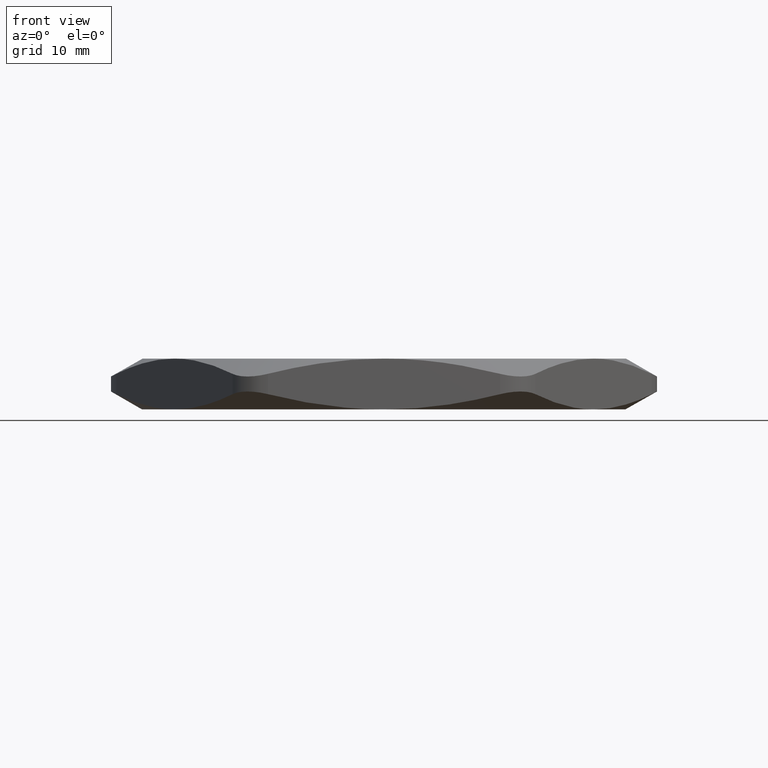
[diagram: clean part render]
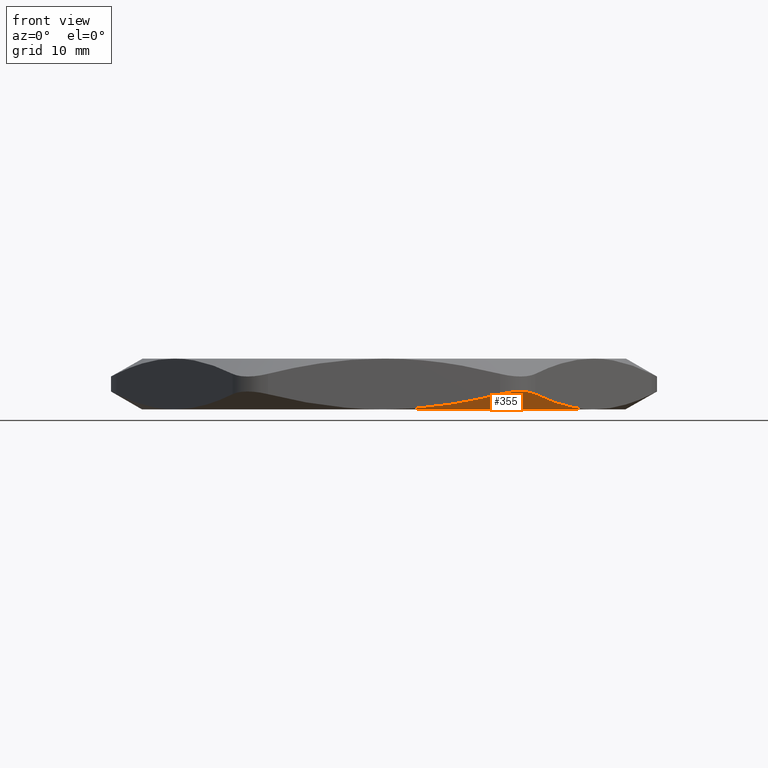
[diagram: same view with one face highlighted and labeled with its STEP entity id]
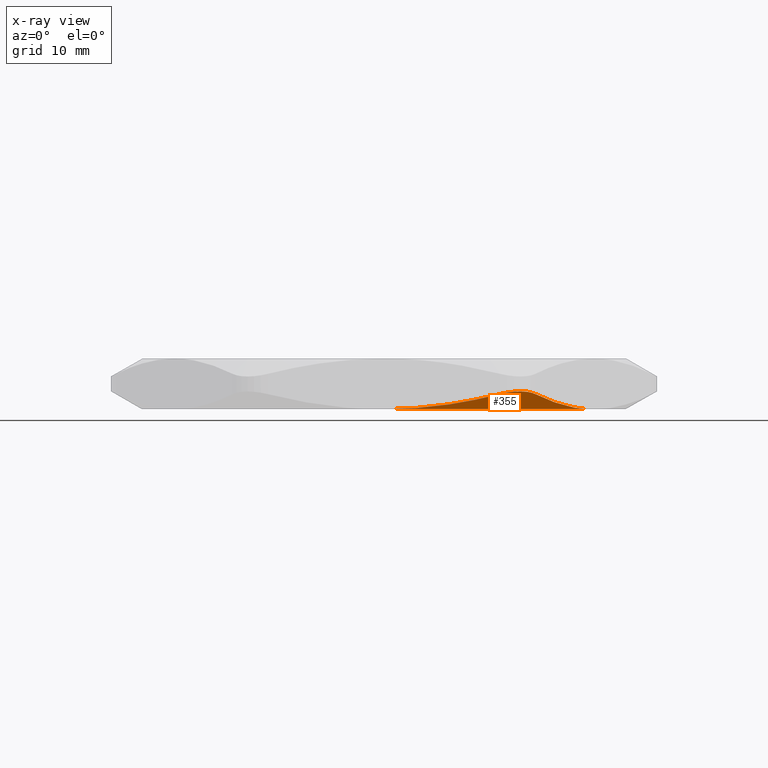
[diagram: x-ray of the same camera — body ghosted, the highlighted face saturated]
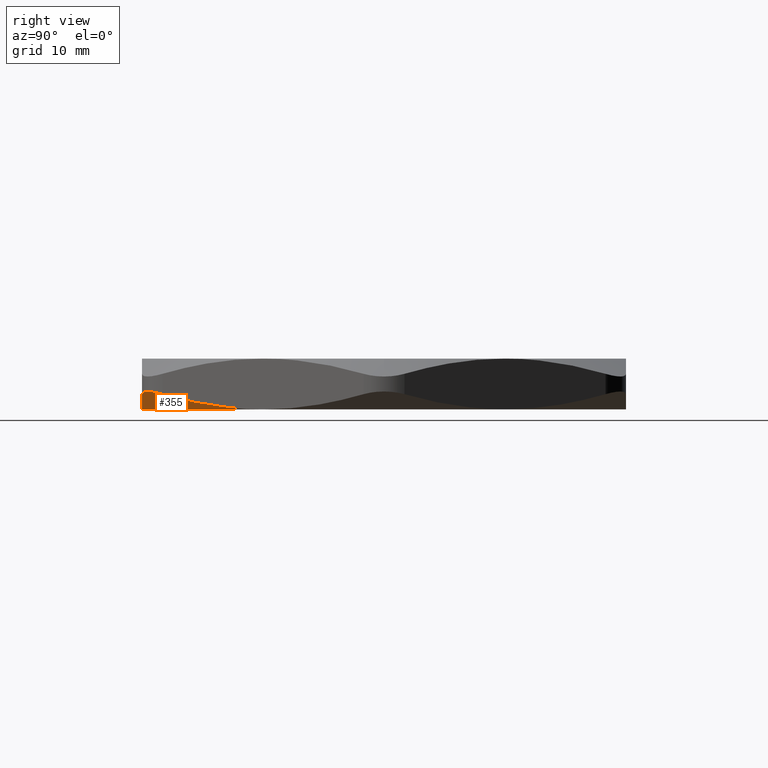
[diagram: same view with one face highlighted and labeled with its STEP entity id]
A machine part, front view. The second image highlights one B-rep face of the part: STEP entity #355.
The next image is the same camera in x-ray: the body ghosted, the highlighted face saturated — about 0% of this face is hidden behind the body in this view.
A second angle (right view) of the same face is appended — the face is thin or edge-on in the first view.
In plain terms, the highlighted conical surface has half-angle 60 deg.
Its self-contained STEP definition (entity closure, byte-faithful):
#124 = EDGE_CURVE ( 'NONE', #125, #184, #1213, .T. ) ;
#125 = VERTEX_POINT ( 'NONE', #1212 ) ;
#173 = VERTEX_POINT ( 'NONE', #1330 ) ;
#183 = VERTEX_POINT ( 'NONE', #1361 ) ;
#184 = VERTEX_POINT ( 'NONE', #1360 ) ;
#211 = EDGE_CURVE ( 'NONE', #173, #184, #1444, .T. ) ;
#244 = EDGE_CURVE ( 'NONE', #173, #183, #1522, .T. ) ;
#355 = ADVANCED_FACE ( 'NONE', ( #1821 ), #1775, .T. ) ;
#356 = EDGE_LOOP ( 'NONE', ( #357, #358, #360, #361 ) ) ;
#357 = ORIENTED_EDGE ( 'NONE', *, *, #244, .T. ) ;
#358 = ORIENTED_EDGE ( 'NONE', *, *, #359, .T. ) ;
#359 = EDGE_CURVE ( 'NONE', #183, #125, #1561, .T. ) ;
#360 = ORIENTED_EDGE ( 'NONE', *, *, #124, .T. ) ;
#361 = ORIENTED_EDGE ( 'NONE', *, *, #211, .F. ) ;
#1202 = CARTESIAN_POINT ( 'NONE',  ( 0.0000000000000000000, -1.474999999999999900, 0.0000000000000000000 ) ) ;
#1203 = CARTESIAN_POINT ( 'NONE',  ( 0.05951594662061776600, -1.475000000000000300, 1.480640270003580300E-017 ) ) ;
#1204 = CARTESIAN_POINT ( 'NONE',  ( 0.1192025980619824300, -1.474999999999999900, 0.002087349527884136200 ) ) ;
#1205 = CARTESIAN_POINT ( 'NONE',  ( 0.2089873998950254600, -1.474999999999999900, 0.008334326575859037100 ) ) ;
#1206 = CARTESIAN_POINT ( 'NONE',  ( 0.2389809541913226500, -1.475000000000000300, 0.01093891151175703500 ) ) ;
#1207 = CARTESIAN_POINT ( 'NONE',  ( 0.2985984673332758900, -1.474999999999999900, 0.01710969050048058100 ) ) ;
#1208 = CARTESIAN_POINT ( 'NONE',  ( 0.3282783849973005000, -1.474999999999999900, 0.02067867395030252200 ) ) ;
#1209 = CARTESIAN_POINT ( 'NONE',  ( 0.4760725403496204300, -1.474999999999999900, 0.04079607030212794400 ) ) ;
#1210 = CARTESIAN_POINT ( 'NONE',  ( 0.5923712532308761400, -1.474999999999999900, 0.06415901495888123900 ) ) ;
#1211 = CARTESIAN_POINT ( 'NONE',  ( 0.7072540797572386400, -1.474999999999999900, 0.09283645737910092800 ) ) ;
#1212 = CARTESIAN_POINT ( 'NONE',  ( 0.7072540797572386400, -1.474999999999999900, 0.09283645737910092800 ) ) ;
#1213 = B_SPLINE_CURVE_WITH_KNOTS ( 'NONE', 3,
 ( #1211, #1210, #1209, #1208, #1207, #1206, #1205, #1204, #1203, #1202 ),
 .UNSPECIFIED., .F., .F.,
 ( 4, 2, 2, 2, 4 ),
 ( 0.1006460023702015100, 0.1097008841561893700, 0.1119646046026863300, 0.1142283250491832900, 0.1187557659421772100 ),
 .UNSPECIFIED. ) ;
#1330 = CARTESIAN_POINT ( 'NONE',  ( 1.277387470582046900, -0.7374999999999998200, 0.0000000000000000000 ) ) ;
#1360 = CARTESIAN_POINT ( 'NONE',  ( 0.0000000000000000000, -1.474999999999999900, 0.0000000000000000000 ) ) ;
#1361 = CARTESIAN_POINT ( 'NONE',  ( 0.9237604307034007500, -1.350000000000000100, 0.09283645737911398700 ) ) ;
#1440 = DIRECTION ( 'NONE',  ( -1.000000000000000000, 0.0000000000000000000, 0.0000000000000000000 ) ) ;
#1441 = DIRECTION ( 'NONE',  ( 0.0000000000000000000, 0.0000000000000000000, -1.000000000000000000 ) ) ;
#1442 = CARTESIAN_POINT ( 'NONE',  ( 0.0000000000000000000, 0.0000000000000000000, 0.0000000000000000000 ) ) ;
#1443 = AXIS2_PLACEMENT_3D ( 'NONE', #1442, #1441, #1440 ) ;
#1444 = CIRCLE ( 'NONE', #1443, 1.474999999999999600 ) ;
#1522 = B_SPLINE_CURVE_WITH_KNOTS ( 'NONE', 3,
 ( #1581, #1580, #1579, #1578, #1577, #1576, #1575, #1574, #1573, #1572 ),
 .UNSPECIFIED., .F., .F.,
 ( 4, 2, 2, 2, 4 ),
 ( 0.02188668704060471600, 0.02414185141347531900, 0.02639701578634591500, 0.03090734453208710000, 0.03992800202356947000 ),
 .UNSPECIFIED. ) ;
#1559 = CARTESIAN_POINT ( 'NONE',  ( 0.8684102986511479400, -1.416439015704041600, 0.1076297772343334700 ) ) ;
#1560 = CARTESIAN_POINT ( 'NONE',  ( 0.8767555792405548100, -1.409089837088648200, 0.1065525048571079600 ) ) ;
#1561 = B_SPLINE_CURVE_WITH_KNOTS ( 'NONE', 3,
 ( #1800, #1799, #1798, #1560, #1559, #1869, #1868, #1867, #1866, #1865, #1864, #1863, #1862, #1861 ),
 .UNSPECIFIED., .F., .F.,
 ( 4, 2, 2, 2, 2, 2, 4 ),
 ( 7.806255641895631900E-018, 0.001670740141120106300, 0.002506110211680144100, 0.003341480282240182600, 0.004176850352800220600, 0.005012220423360258700, 0.006682960564480340900 ),
 .UNSPECIFIED. ) ;
#1572 = CARTESIAN_POINT ( 'NONE',  ( 0.9237604307034007500, -1.350000000000000100, 0.09283645737911398700 ) ) ;
#1573 = CARTESIAN_POINT ( 'NONE',  ( 0.9816064642138203600, -1.249807730943621700, 0.06395700959058675500 ) ) ;
#1574 = CARTESIAN_POINT ( 'NONE',  ( 1.039911012683627100, -1.148821290681554000, 0.04061376845023476800 ) ) ;
#1575 = CARTESIAN_POINT ( 'NONE',  ( 1.128279110553534100, -0.9957632554026557600, 0.01660183592357534300 ) ) ;
#1576 = CARTESIAN_POINT ( 'NONE',  ( 1.157887011209374000, -0.9444808671612888700, 0.01043154517706455400 ) ) ;
#1577 = CARTESIAN_POINT ( 'NONE',  ( 1.202549565541818100, -0.8671230538616899700, 0.004203154341843667700 ) ) ;
#1578 = CARTESIAN_POINT ( 'NONE',  ( 1.217478804585002900, -0.8412648533205535600, 0.002630771429634555400 ) ) ;
#1579 = CARTESIAN_POINT ( 'NONE',  ( 1.247423570340427100, -0.7893989976114096400, 0.0005278611811370413700 ) ) ;
#1580 = CARTESIAN_POINT ( 'NONE',  ( 1.262437926096535900, -0.7633933705989152100, -3.172927617641328200E-016 ) ) ;
#1581 = CARTESIAN_POINT ( 'NONE',  ( 1.277387470582046900, -0.7374999999999998200, 0.0000000000000000000 ) ) ;
#1775 = CONICAL_SURFACE ( 'NONE', #1820, 1.474999999999999900, 1.047197551196600100 ) ;
#1798 = CARTESIAN_POINT ( 'NONE',  ( 0.8999179869069960900, -1.385810213193717100, 0.1023242928827933400 ) ) ;
#1799 = CARTESIAN_POINT ( 'NONE',  ( 0.9129790434466201800, -1.368673910504818200, 0.09821903059070649600 ) ) ;
#1800 = CARTESIAN_POINT ( 'NONE',  ( 0.9237604307034007500, -1.350000000000000100, 0.09283645737911398700 ) ) ;
#1803 = DIRECTION ( 'NONE',  ( -1.000000000000000000, 0.0000000000000000000, 0.0000000000000000000 ) ) ;
#1804 = DIRECTION ( 'NONE',  ( 0.0000000000000000000, 0.0000000000000000000, 1.000000000000000000 ) ) ;
#1819 = CARTESIAN_POINT ( 'NONE',  ( 0.0000000000000000000, 0.0000000000000000000, 0.0000000000000000000 ) ) ;
#1820 = AXIS2_PLACEMENT_3D ( 'NONE', #1819, #1804, #1803 ) ;
#1821 = FACE_OUTER_BOUND ( 'NONE', #356, .T. ) ;
#1861 = CARTESIAN_POINT ( 'NONE',  ( 0.7072540797572386400, -1.474999999999999900, 0.09283645737910092800 ) ) ;
#1862 = CARTESIAN_POINT ( 'NONE',  ( 0.7288226641345623100, -1.475000000000004100, 0.09822048086867496400 ) ) ;
#1863 = CARTESIAN_POINT ( 'NONE',  ( 0.7506547107154809600, -1.472163498820812300, 0.1023995754093088900 ) ) ;
#1864 = CARTESIAN_POINT ( 'NONE',  ( 0.7821894166886513800, -1.463753110468140700, 0.1065803844535180400 ) ) ;
#1865 = CARTESIAN_POINT ( 'NONE',  ( 0.7925456478790177100, -1.460259458976344200, 0.1076382776679690200 ) ) ;
#1866 = CARTESIAN_POINT ( 'NONE',  ( 0.8129335101536683300, -1.451833689344423700, 0.1090612225075783800 ) ) ;
#1867 = CARTESIAN_POINT ( 'NONE',  ( 0.8229298087856294900, -1.446900087997601100, 0.1094169917471170500 ) ) ;
#1868 = CARTESIAN_POINT ( 'NONE',  ( 0.8419357338714103000, -1.435906081905348600, 0.1094080984780627100 ) ) ;
#1869 = CARTESIAN_POINT ( 'NONE',  ( 0.8510312360584281200, -1.429812970653363100, 0.1090506009976064000 ) ) ;